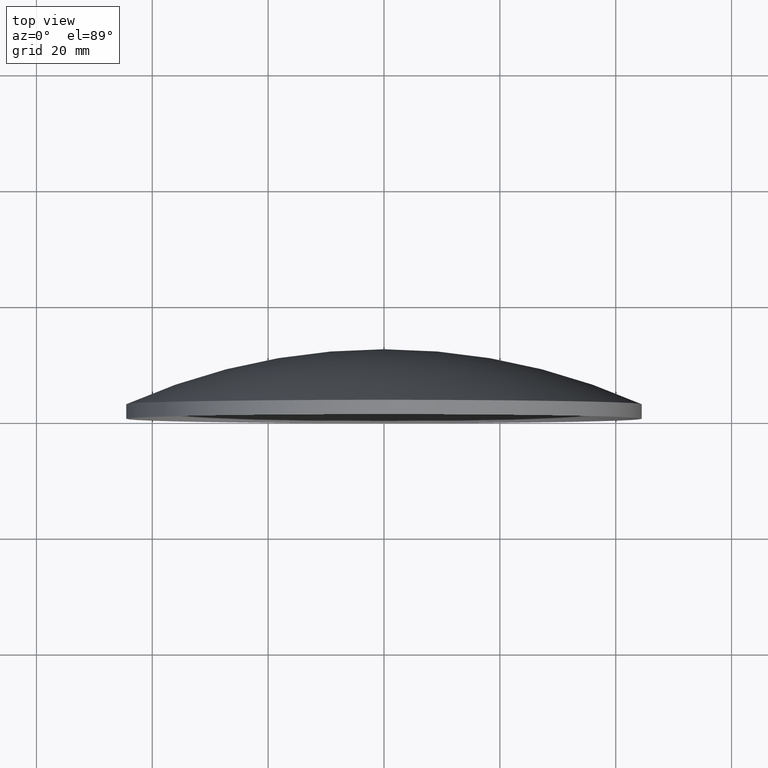
[diagram: clean part render]
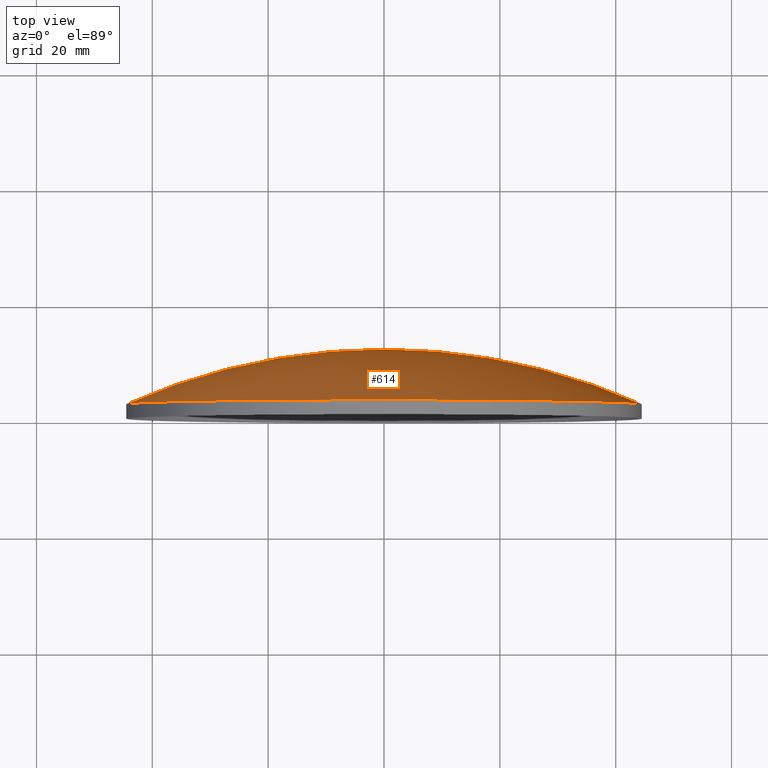
[diagram: same view with one face highlighted and labeled with its STEP entity id]
A machine part, top view. The second image highlights one B-rep face of the part: STEP entity #614.
In plain terms, the highlighted spherical surface has radius 108.974 mm.
Its self-contained STEP definition (entity closure, byte-faithful):
#614 = ADVANCED_FACE ( 'NONE', ( #11703 ), #4230, .T. ) ;
#631 = CARTESIAN_POINT ( 'NONE',  ( 2.436402579356311000E-014, -96.97368421052624400, 0.0000000000000000000 ) ) ;
#973 = VERTEX_POINT ( 'NONE', #11027 ) ;
#1520 = CIRCLE ( 'NONE', #11001, 108.9736842105262300 ) ;
#1522 = DIRECTION ( 'NONE',  ( -1.000000000000000000, 0.0000000000000000000, 0.0000000000000000000 ) ) ;
#2183 = VERTEX_POINT ( 'NONE', #6033 ) ;
#2664 = DIRECTION ( 'NONE',  ( 1.000000000000000000, 0.0000000000000000000, -1.224646799147353200E-016 ) ) ;
#4230 = SPHERICAL_SURFACE ( 'NONE', #13266, 108.9736842105262300 ) ;
#4387 = AXIS2_PLACEMENT_3D ( 'NONE', #13176, #4811, #12200 ) ;
#4618 = DIRECTION ( 'NONE',  ( 0.0000000000000000000, 0.0000000000000000000, -1.000000000000000000 ) ) ;
#4811 = DIRECTION ( 'NONE',  ( -9.745610317425236300E-015, -1.000000000000000000, -0.0000000000000000000 ) ) ;
#5252 = ORIENTED_EDGE ( 'NONE', *, *, #9276, .F. ) ;
#6033 = CARTESIAN_POINT ( 'NONE',  ( 44.50000000000000000, 2.499999999999988500, 0.0000000000000000000 ) ) ;
#6198 = AXIS2_PLACEMENT_3D ( 'NONE', #631, #4618, #1522 ) ;
#6724 = CIRCLE ( 'NONE', #4387, 44.50000000000006400 ) ;
#6825 = DIRECTION ( 'NONE',  ( 1.224646799147353200E-016, -1.193493048097223700E-030, 1.000000000000000000 ) ) ;
#7846 = EDGE_CURVE ( 'NONE', #12447, #973, #1520, .T. ) ;
#8572 = CARTESIAN_POINT ( 'NONE',  ( 2.436402579356311000E-014, -96.97368421052624400, 0.0000000000000000000 ) ) ;
#9276 = EDGE_CURVE ( 'NONE', #12447, #2183, #12952, .T. ) ;
#9521 = DIRECTION ( 'NONE',  ( -0.0000000000000000000, 0.0000000000000000000, 1.000000000000000000 ) ) ;
#10758 = CARTESIAN_POINT ( 'NONE',  ( 1.093051800641492800E-012, 11.99999999999999600, 0.0000000000000000000 ) ) ;
#11001 = AXIS2_PLACEMENT_3D ( 'NONE', #11972, #6825, #2664 ) ;
#11027 = CARTESIAN_POINT ( 'NONE',  ( -44.50000000000013500, 2.500000000000855800, 5.449678256205731400E-015 ) ) ;
#11304 = EDGE_LOOP ( 'NONE', ( #5252, #11319, #13253 ) ) ;
#11319 = ORIENTED_EDGE ( 'NONE', *, *, #7846, .T. ) ;
#11703 = FACE_OUTER_BOUND ( 'NONE', #11304, .T. ) ;
#11972 = CARTESIAN_POINT ( 'NONE',  ( 2.436402579356311000E-014, -96.97368421052624400, 0.0000000000000000000 ) ) ;
#12200 = DIRECTION ( 'NONE',  ( 1.000000000000000000, -9.745637505487665900E-015, 0.0000000000000000000 ) ) ;
#12447 = VERTEX_POINT ( 'NONE', #10758 ) ;
#12634 = EDGE_CURVE ( 'NONE', #2183, #973, #6724, .T. ) ;
#12824 = DIRECTION ( 'NONE',  ( 1.000000000000000000, -9.805942314818915900E-015, 0.0000000000000000000 ) ) ;
#12952 = CIRCLE ( 'NONE', #6198, 108.9736842105262300 ) ;
#13176 = CARTESIAN_POINT ( 'NONE',  ( -6.821927222197248700E-014, 2.500000000000421900, 0.0000000000000000000 ) ) ;
#13253 = ORIENTED_EDGE ( 'NONE', *, *, #12634, .F. ) ;
#13266 = AXIS2_PLACEMENT_3D ( 'NONE', #8572, #9521, #12824 ) ;